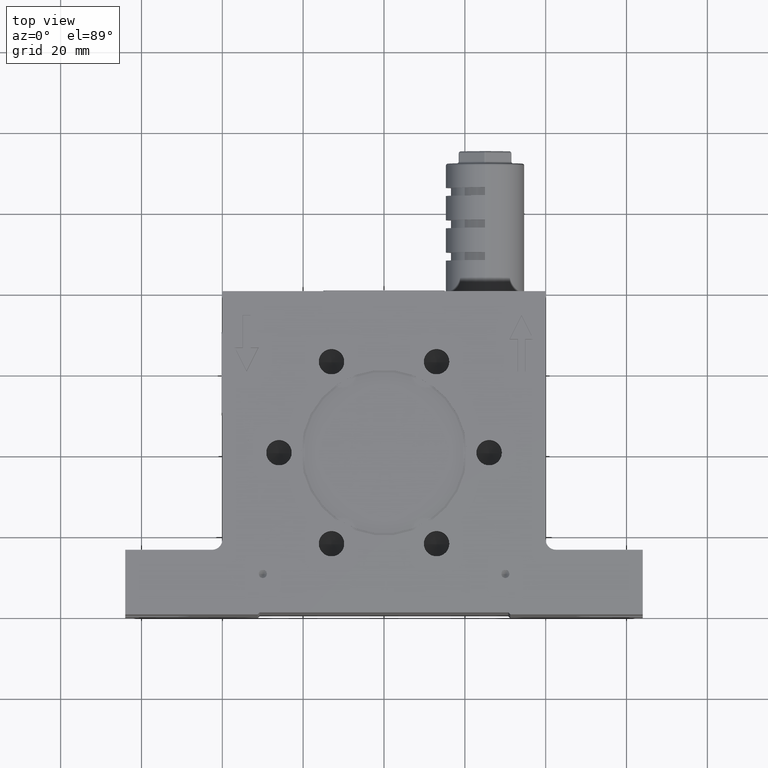
[diagram: clean part render]
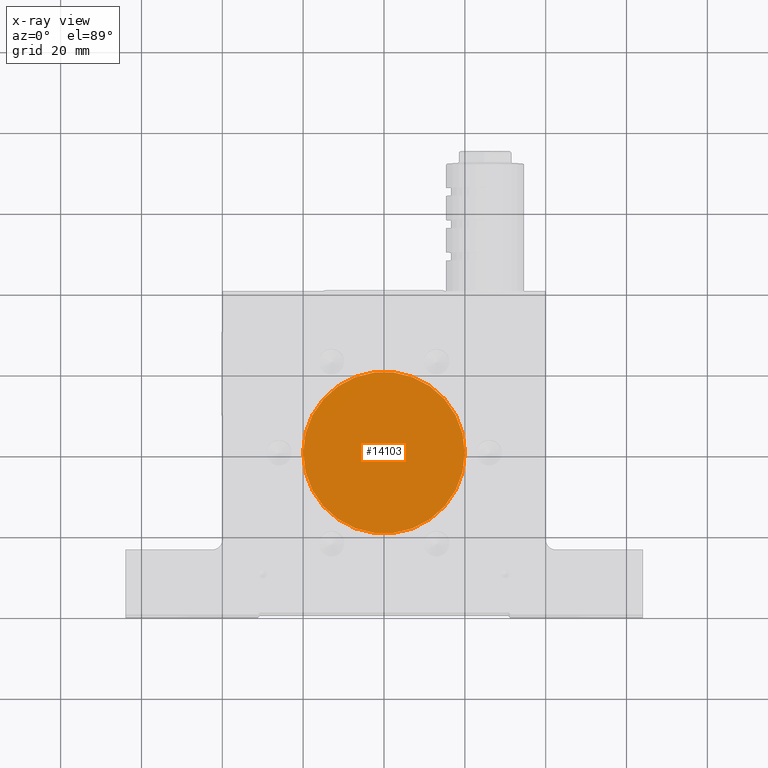
[diagram: x-ray — body ghosted, one internal face saturated and labeled with its STEP entity id]
A machine part, top view, then the same camera in x-ray: the body is ghosted and one INTERNAL B-rep face — a face not visible from any outside direction — is saturated and labeled: STEP entity #14103.
In plain terms, the highlighted planar face has unit normal (0, 0, 1).
Its self-contained STEP definition (entity closure, byte-faithful):
#549 = CARTESIAN_POINT ( 'NONE',  ( 0.0000000000000000000, 0.0000000000000000000, 27.50000000000000000 ) ) ;
#2475 = EDGE_LOOP ( 'NONE', ( #15554, #15725 ) ) ;
#2891 = CIRCLE ( 'NONE', #5599, 20.00000000000000000 ) ;
#4120 = CARTESIAN_POINT ( 'NONE',  ( 0.0000000000000000000, 0.0000000000000000000, 27.50000000000000000 ) ) ;
#5599 = AXIS2_PLACEMENT_3D ( 'NONE', #20338, #8556, #13514 ) ;
#5771 = FACE_OUTER_BOUND ( 'NONE', #2475, .T. ) ;
#7995 = EDGE_CURVE ( 'NONE', #20914, #20576, #11182, .T. ) ;
#8556 = DIRECTION ( 'NONE',  ( 0.0000000000000000000, 0.0000000000000000000, 1.000000000000000000 ) ) ;
#9054 = DIRECTION ( 'NONE',  ( 0.0000000000000000000, 0.0000000000000000000, 1.000000000000000000 ) ) ;
#9193 = CARTESIAN_POINT ( 'NONE',  ( -20.00000000000000000, 0.0000000000000000000, 27.50000000000000000 ) ) ;
#9264 = DIRECTION ( 'NONE',  ( 0.0000000000000000000, 0.0000000000000000000, 1.000000000000000000 ) ) ;
#11182 = CIRCLE ( 'NONE', #19508, 20.00000000000000000 ) ;
#12436 = CARTESIAN_POINT ( 'NONE',  ( 20.00000000000000000, 2.449293598294706500E-015, 27.50000000000000000 ) ) ;
#13208 = AXIS2_PLACEMENT_3D ( 'NONE', #549, #9054, #15701 ) ;
#13514 = DIRECTION ( 'NONE',  ( 1.000000000000000000, 0.0000000000000000000, 0.0000000000000000000 ) ) ;
#13593 = PLANE ( 'NONE',  #13208 ) ;
#13664 = EDGE_CURVE ( 'NONE', #20576, #20914, #2891, .T. ) ;
#14103 = ADVANCED_FACE ( 'NONE', ( #5771 ), #13593, .F. ) ;
#15554 = ORIENTED_EDGE ( 'NONE', *, *, #13664, .F. ) ;
#15701 = DIRECTION ( 'NONE',  ( 1.000000000000000000, 0.0000000000000000000, 0.0000000000000000000 ) ) ;
#15725 = ORIENTED_EDGE ( 'NONE', *, *, #7995, .F. ) ;
#19508 = AXIS2_PLACEMENT_3D ( 'NONE', #4120, #9264, #21048 ) ;
#20338 = CARTESIAN_POINT ( 'NONE',  ( 0.0000000000000000000, 0.0000000000000000000, 27.50000000000000000 ) ) ;
#20576 = VERTEX_POINT ( 'NONE', #9193 ) ;
#20914 = VERTEX_POINT ( 'NONE', #12436 ) ;
#21048 = DIRECTION ( 'NONE',  ( 1.000000000000000000, 0.0000000000000000000, 0.0000000000000000000 ) ) ;